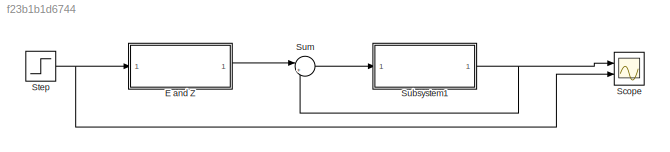
MODEL slx_f23b1b1d6744
KIND model
CONFIG AbsTol = auto
CONFIG FixedStep = auto
CONFIG MaxStep = auto
CONFIG MinStep = auto
CONFIG RelTol = 1e-3
CONFIG SampleTimeConstraint = Unconstrained
CONFIG Solver = VariableStepAuto
CONFIG SolverMode = Auto
CONFIG SolverName = VariableStepAuto
CONFIG StartTime = 0.0
CONFIG StopTime = 10
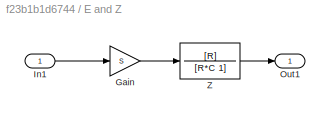
BLOCK [SubSystem] E and Z
  Ports = [1, 1]
  RequestExecContextInheritance = off
  Variant = off
BLOCK [Gain] E and Z/Gain
  Gain = S
  OutDataTypeStr = Inherit: Inherit via internal rule
  ParamDataTypeStr = Inherit: Inherit via internal rule
  SaturateOnIntegerOverflow = off
BLOCK [Inport] E and Z/In1
  IconDisplay = Port number
BLOCK [Outport] E and Z/Out1
  IconDisplay = Port number
BLOCK [TransferFcn] E and Z/Z
  Denominator = [R*C 1]
  Numerator = [R]
BLOCK [Scope] Scope
  NumInputPorts = 2
  Ports = [2]
  ScopeSpecificationString = Simulink.scopes.TimeScopeBlockCfg('CurrentConfiguration', extmgr.ConfigurationSet(extmgr.Configuration('Core','General UI',true),extmgr.Configuration('Core','Source UI',true),extmgr.Configuration('Sources','WiredSimulink',true),extmgr.Configuration('Visuals','Time Domain',true,'SerializedDisplays',{struct('MinYLimReal','-58420929947978831553042148266701451175697796849997040596259464027674261163058...<+3585ch>
BLOCK [Step] Step
  SampleTime = 0
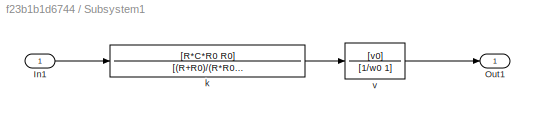
BLOCK [SubSystem] Subsystem1
  Ports = [1, 1]
  RequestExecContextInheritance = off
  Variant = off
BLOCK [Inport] Subsystem1/In1
  IconDisplay = Port number
BLOCK [Outport] Subsystem1/Out1
  IconDisplay = Port number
BLOCK [TransferFcn] Subsystem1/k
  Denominator = [(R+R0)/(R*R0 * (C + C0)) (R+R0)]
  Numerator = [R*C*R0 R0]
BLOCK [TransferFcn] Subsystem1/v
  Denominator = [1/w0 1]
  Numerator = [v0]
BLOCK [Sum] Sum
  IconShape = round
  InputSameDT = off
  Inputs = |+-
  OutDataTypeStr = Inherit: Inherit via internal rule
  Ports = [2, 1]
  SaturateOnIntegerOverflow = off
LINE E and Z/Gain:1 -> E and Z/Z:1
LINE E and Z/In1:1 -> E and Z/Gain:1
LINE E and Z/Z:1 -> E and Z/Out1:1
LINE E and Z:1 -> Sum:1
NET Step:1 -> E and Z:1, Scope:2
LINE Subsystem1/In1:1 -> Subsystem1/k:1
LINE Subsystem1/k:1 -> Subsystem1/v:1
LINE Subsystem1/v:1 -> Subsystem1/Out1:1
NET Subsystem1:1 -> Scope:1, Sum:2
LINE Sum:1 -> Subsystem1:1
note: NET lines group one-source signal fan-out (src -> all destinations, sorted); 1:1 wires keep LINE
